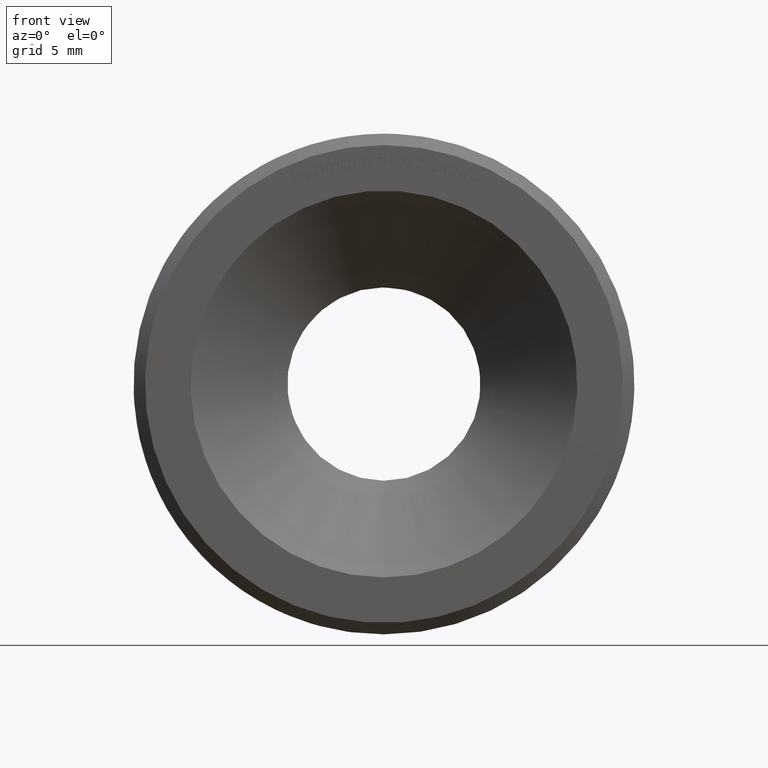
[diagram: clean part render]
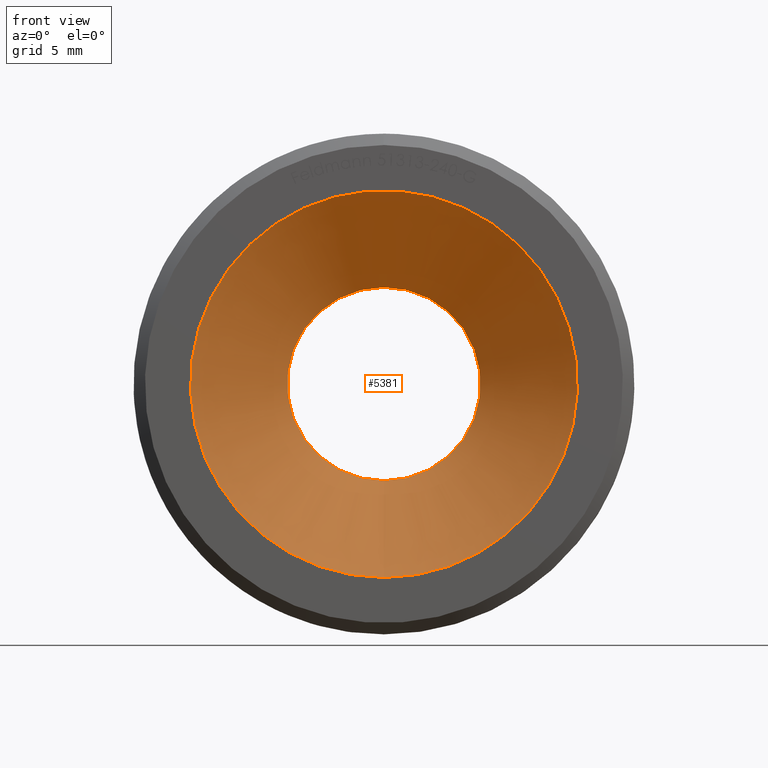
[diagram: same view with one face highlighted and labeled with its STEP entity id]
A machine part, front view. The second image highlights one B-rep face of the part: STEP entity #5381.
In plain terms, the highlighted conical surface has half-angle 45 deg.
Its self-contained STEP definition (entity closure, byte-faithful):
#609 = EDGE_LOOP ( 'NONE', ( #6472 ) ) ;
#1119 = CIRCLE ( 'NONE', #13679, 8.500000000000000000 ) ;
#1352 = CARTESIAN_POINT ( 'NONE',  ( 0.000000000000000000, 4.250000000000000000, 0.000000000000000000 ) ) ;
#3416 = DIRECTION ( 'NONE',  ( -0.000000000000000000, -1.000000000000000000, -0.000000000000000000 ) ) ;
#3452 = CARTESIAN_POINT ( 'NONE',  ( 0.000000000000000000, 0.000000000000000000, -8.500000000000000000 ) ) ;
#3874 = DIRECTION ( 'NONE',  ( -0.000000000000000000, -1.000000000000000000, -0.000000000000000000 ) ) ;
#5256 = VERTEX_POINT ( 'NONE', #3452 ) ;
#5381 = ADVANCED_FACE ( 'NONE', ( #7678, #11147 ), #13624, .F. ) ;
#5591 = DIRECTION ( 'NONE',  ( 0.000000000000000000, 0.000000000000000000, -1.000000000000000000 ) ) ;
#6472 = ORIENTED_EDGE ( 'NONE', *, *, #11548, .F. ) ;
#7058 = VERTEX_POINT ( 'NONE', #8792 ) ;
#7113 = DIRECTION ( 'NONE',  ( -0.000000000000000000, -1.000000000000000000, -0.000000000000000000 ) ) ;
#7386 = AXIS2_PLACEMENT_3D ( 'NONE', #10214, #3874, #11230 ) ;
#7678 = FACE_OUTER_BOUND ( 'NONE', #10371, .T. ) ;
#8792 = CARTESIAN_POINT ( 'NONE',  ( 0.000000000000000000, 4.250000000000000000, -4.250000000000000000 ) ) ;
#10214 = CARTESIAN_POINT ( 'NONE',  ( 0.000000000000000000, 0.000000000000000000, 0.000000000000000000 ) ) ;
#10371 = EDGE_LOOP ( 'NONE', ( #11735 ) ) ;
#11147 = FACE_BOUND ( 'NONE', #609, .T. ) ;
#11230 = DIRECTION ( 'NONE',  ( 0.000000000000000000, 0.000000000000000000, -1.000000000000000000 ) ) ;
#11548 = EDGE_CURVE ( 'NONE', #7058, #7058, #11715, .T. ) ;
#11715 = CIRCLE ( 'NONE', #12535, 4.250000000000000000 ) ;
#11735 = ORIENTED_EDGE ( 'NONE', *, *, #13485, .T. ) ;
#12417 = CARTESIAN_POINT ( 'NONE',  ( 0.000000000000000000, 0.000000000000000000, 0.000000000000000000 ) ) ;
#12535 = AXIS2_PLACEMENT_3D ( 'NONE', #1352, #3416, #5591 ) ;
#13479 = DIRECTION ( 'NONE',  ( 0.000000000000000000, 0.000000000000000000, -1.000000000000000000 ) ) ;
#13485 = EDGE_CURVE ( 'NONE', #5256, #5256, #1119, .T. ) ;
#13624 = CONICAL_SURFACE ( 'NONE', #7386, 8.500000000000000000, 0.7853981633974482790 ) ;
#13679 = AXIS2_PLACEMENT_3D ( 'NONE', #12417, #7113, #13479 ) ;